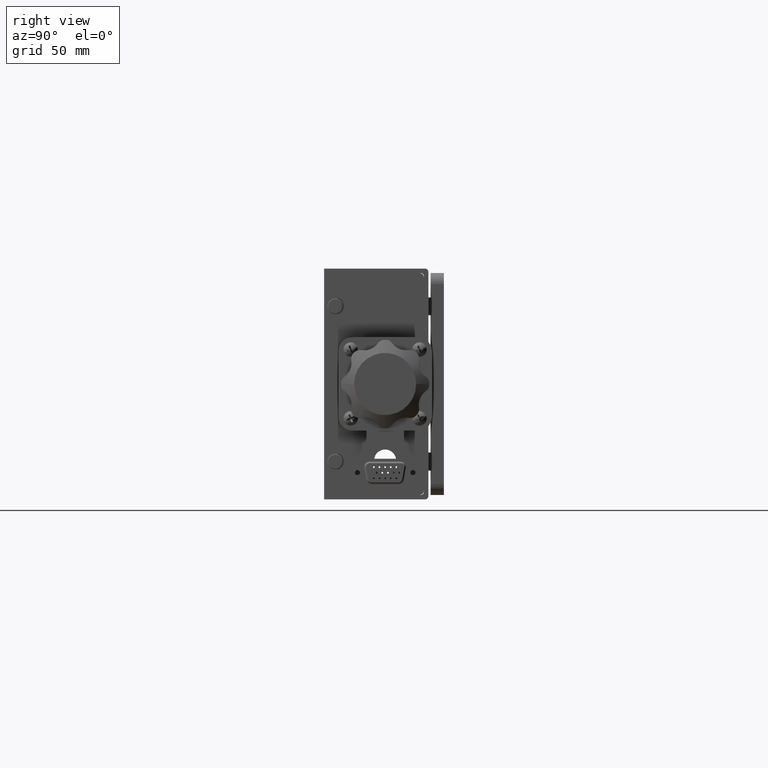
[diagram: clean part render]
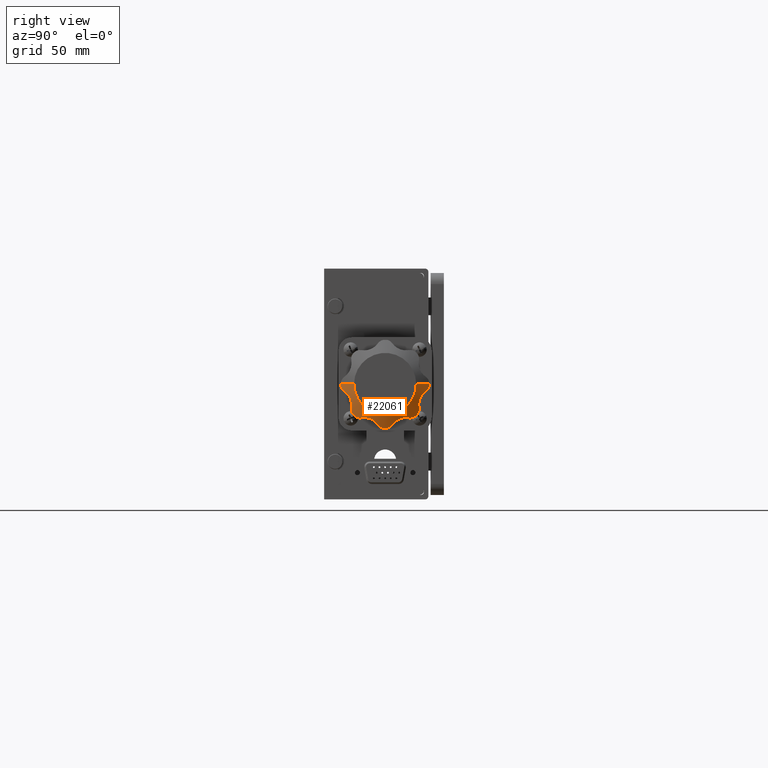
[diagram: same view with one face highlighted and labeled with its STEP entity id]
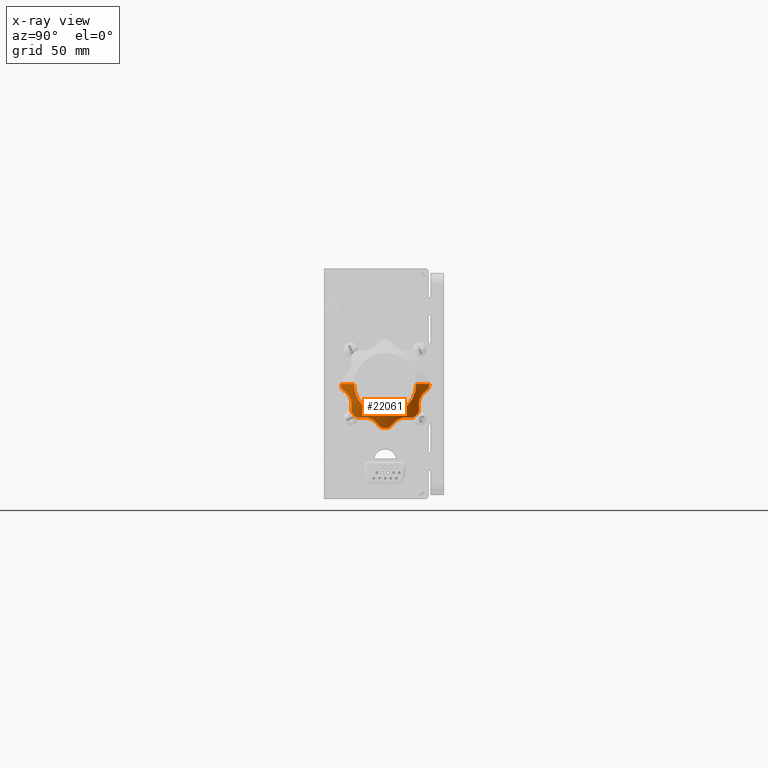
[diagram: x-ray of the same camera — body ghosted, the highlighted face saturated]
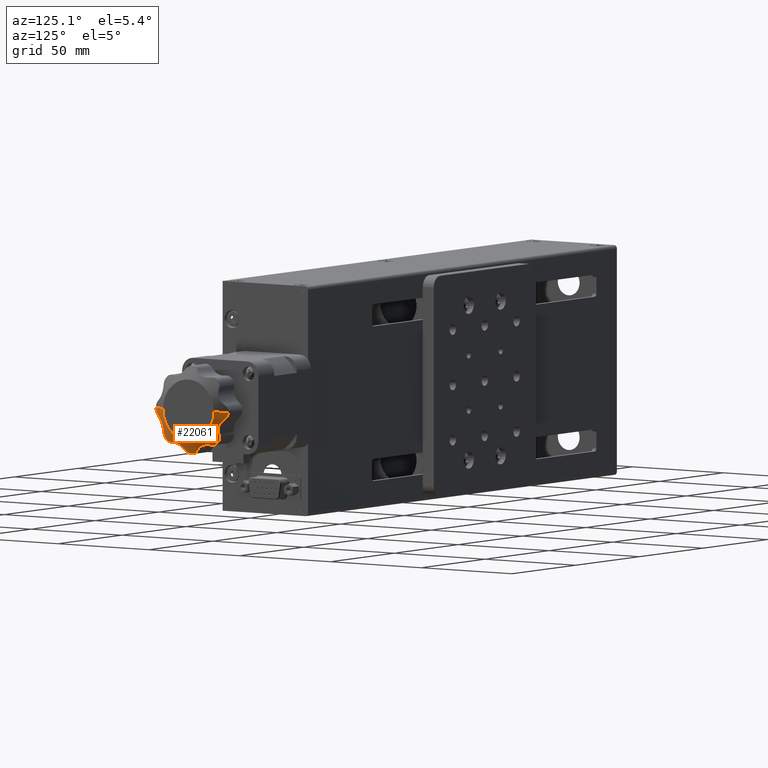
[diagram: same view with one face highlighted and labeled with its STEP entity id]
A machine part, right view. The second image highlights one B-rep face of the part: STEP entity #22061.
The next image is the same camera in x-ray: the body ghosted, the highlighted face saturated — about 0% of this face is hidden behind the body in this view.
A second angle (auxiliary view) of the same face is appended — the face is thin or edge-on in the first view.
In plain terms, the highlighted conical surface has half-angle 63 deg.
Its self-contained STEP definition (entity closure, byte-faithful):
#12 = CARTESIAN_POINT ( 'NONE',  ( 184.0000000000000300, 26.45167253179369700, -19.86018257591583900 ) ) ;
#52 = VERTEX_POINT ( 'NONE', #22390 ) ;
#512 = CARTESIAN_POINT ( 'NONE',  ( 184.3045522164380800, 15.74501306397941700, -15.29609788310636300 ) ) ;
#561 = CIRCLE ( 'NONE', #23534, 19.88783151651546200 ) ;
#562 = DIRECTION ( 'NONE',  ( 1.000000000000000000, -1.567335406337901700E-016, -1.104717828883689100E-016 ) ) ;
#570 = ORIENTED_EDGE ( 'NONE', *, *, #12036, .T. ) ;
#583 = DIRECTION ( 'NONE',  ( 1.000000000000000000, -1.567335406337901700E-016, -1.104717828883689100E-016 ) ) ;
#674 = CARTESIAN_POINT ( 'NONE',  ( 184.0000000000000300, 47.36018257591582900, -1.048327468206231300 ) ) ;
#1185 = CARTESIAN_POINT ( 'NONE',  ( 185.3777367299794900, 32.74344599683732300, -16.36799925480003300 ) ) ;
#1284 = CARTESIAN_POINT ( 'NONE',  ( 185.1076970187259000, 18.23016302368141700, -15.10864167487845200 ) ) ;
#1295 = CARTESIAN_POINT ( 'NONE',  ( 184.6624876279491600, 38.12220015011040200, -15.25348212235923400 ) ) ;
#1299 = VERTEX_POINT ( 'NONE', #21240 ) ;
#1399 = CARTESIAN_POINT ( 'NONE',  ( 184.8957180678859200, 23.81599125102807000, -17.75390421083995900 ) ) ;
#1561 = CARTESIAN_POINT ( 'NONE',  ( 184.0593759186635100, 7.784446417491393400, -1.499709208656746100 ) ) ;
#1604 = VERTEX_POINT ( 'NONE', #25804 ) ;
#1659 = CARTESIAN_POINT ( 'NONE',  ( 185.4667672483696800, 43.34782582704125500, -6.179722338723446600 ) ) ;
#1739 = VERTEX_POINT ( 'NONE', #13859 ) ;
#1771 = EDGE_CURVE ( 'NONE', #2765, #24695, #10749, .T. ) ;
#1894 = CIRCLE ( 'NONE', #15603, 19.88783151651546200 ) ;
#2017 = VERTEX_POINT ( 'NONE', #20246 ) ;
#2398 = CARTESIAN_POINT ( 'NONE',  ( 185.2153070941807000, 12.34068434200465500, -8.752941132292345800 ) ) ;
#2592 = CARTESIAN_POINT ( 'NONE',  ( 184.0515186887566600, 12.47708309700971600, -12.88588420570760800 ) ) ;
#2765 = VERTEX_POINT ( 'NONE', #26857 ) ;
#2815 = CARTESIAN_POINT ( 'NONE',  ( 187.0000000000000300, 27.50000000000001400, -1.908195823574487800E-014 ) ) ;
#3104 = B_SPLINE_CURVE_WITH_KNOTS ( 'NONE', 3,
 ( #35577, #30013, #10768, #19015, #2592, #21789 ),
 .UNSPECIFIED., .F., .F.,
 ( 4, 2, 4 ),
 ( 2.128886231513577200E-007, 0.001425860909439160400, 0.002851508930255169800 ),
 .UNSPECIFIED. ) ;
#3157 = B_SPLINE_CURVE_WITH_KNOTS ( 'NONE', 3,
 ( #35263, #15975, #5056, #24262, #7822, #27026, #10564, #29800, #13302, #32604, #16087, #35380, #18818, #2398, #21584, #5159 ),
 .UNSPECIFIED., .F., .F.,
 ( 4, 2, 2, 2, 2, 2, 2, 4 ),
 ( 2.564491608313972700E-007, 0.001803318164121251900, 0.002704849021601461600, 0.003606379879081672300, 0.004507910736561882200, 0.005409441594042091600, 0.006310972451522300200, 0.007212503309002507900 ),
 .UNSPECIFIED. ) ;
#3281 = CARTESIAN_POINT ( 'NONE',  ( 184.5055536155510100, 16.42778674251092100, -15.31287218392950000 ) ) ;
#3455 = B_SPLINE_CURVE_WITH_KNOTS ( 'NONE', 3,
 ( #11684, #28147, #19916, #3545 ),
 .UNSPECIFIED., .F., .F.,
 ( 4, 4 ),
 ( 0.002119815171544775100, 0.002845652650325454200 ),
 .UNSPECIFIED. ) ;
#3545 = CARTESIAN_POINT ( 'NONE',  ( 184.6624876279491300, 42.75348212235912400, -10.62220015011075000 ) ) ;
#3695 = DIRECTION ( 'NONE',  ( -0.4539904997395446400, -0.8910065241883690100, -5.896368886606032500E-017 ) ) ;
#3955 = CARTESIAN_POINT ( 'NONE',  ( 185.4712212983297900, 33.66834296151959200, -15.84595546684313800 ) ) ;
#4063 = CARTESIAN_POINT ( 'NONE',  ( 185.3777368135646100, 19.63375352788478200, -15.28159960163550000 ) ) ;
#4074 = CARTESIAN_POINT ( 'NONE',  ( 184.0000000000000300, 42.28454923670562200, -13.30199031336028300 ) ) ;
#4184 = CARTESIAN_POINT ( 'NONE',  ( 184.6624876279491600, 24.22518911183597400, -18.29687040269197600 ) ) ;
#4227 = EDGE_CURVE ( 'NONE', #34670, #25108, #34438, .T. ) ;
#4335 = CARTESIAN_POINT ( 'NONE',  ( 184.1914101639429200, 8.102738441091910100, -2.124327132788312000 ) ) ;
#4431 = CARTESIAN_POINT ( 'NONE',  ( 185.4338196571571000, 43.59403031007268200, -5.703246881861222300 ) ) ;
#4616 = ORIENTED_EDGE ( 'NONE', *, *, #32184, .T. ) ;
#4925 = CARTESIAN_POINT ( 'NONE',  ( 184.0593759186635100, 28.99970920865681000, -19.71555358250865100 ) ) ;
#5056 = CARTESIAN_POINT ( 'NONE',  ( 185.0431600133842900, 10.10239113128625200, -3.985244069722389900 ) ) ;
#5159 = CARTESIAN_POINT ( 'NONE',  ( 185.0681554785693900, 12.35808394342095800, -9.341218788444628300 ) ) ;
#5181 = B_SPLINE_CURVE_WITH_KNOTS ( 'NONE', 3,
 ( #32356, #15851, #4925, #24121, #7702, #26900, #10413, #29673, #13172, #32469 ),
 .UNSPECIFIED., .F., .F.,
 ( 4, 2, 2, 2, 4 ),
 ( 1.845941825701741800E-006, 0.0007127976259200818600, 0.001423749310014462000, 0.002134700994108842300, 0.002845652678203222500 ),
 .UNSPECIFIED. ) ;
#5350 = ORIENTED_EDGE ( 'NONE', *, *, #30948, .T. ) ;
#5404 = CARTESIAN_POINT ( 'NONE',  ( 184.4997281778311700, 24.48546536711774000, -18.66796470288772600 ) ) ;
#5560 = DIRECTION ( 'NONE',  ( 0.0000000000000000000, 1.000000000000000000, 0.0000000000000000000 ) ) ;
#5851 = CARTESIAN_POINT ( 'NONE',  ( 184.6624876279491600, 30.77481088816404800, -18.29687040269199700 ) ) ;
#6014 = CARTESIAN_POINT ( 'NONE',  ( 184.6624876279491300, 16.87779984988964400, -15.25348212235943600 ) ) ;
#6023 = EDGE_CURVE ( 'NONE', #1604, #24422, #3157, .T. ) ;
#6074 = EDGE_CURVE ( 'NONE', #29016, #52, #14765, .T. ) ;
#6312 = CARTESIAN_POINT ( 'NONE',  ( 184.6624876279491300, 42.75348212235912400, -10.62220015011075000 ) ) ;
#6587 = EDGE_CURVE ( 'NONE', #33883, #23279, #3104, .T. ) ;
#6676 = CARTESIAN_POINT ( 'NONE',  ( 185.4667672571537500, 34.33638125268968400, -15.57582878604119400 ) ) ;
#6802 = CARTESIAN_POINT ( 'NONE',  ( 185.4712213111371000, 20.65689516562854100, -15.56645992878769200 ) ) ;
#6807 = CARTESIAN_POINT ( 'NONE',  ( 184.0382766644688100, 42.46164844871560000, -12.99283737778647400 ) ) ;
#6956 = ORIENTED_EDGE ( 'NONE', *, *, #15248, .T. ) ;
#6973 = EDGE_CURVE ( 'NONE', #34831, #13658, #7112, .T. ) ;
#7066 = CARTESIAN_POINT ( 'NONE',  ( 184.3674099949589300, 8.520441163076080600, -2.678406106052257900 ) ) ;
#7112 = LINE ( 'NONE', #28669, #28171 ) ;
#7177 = CARTESIAN_POINT ( 'NONE',  ( 185.3234119966749900, 44.06797905133654300, -4.956625722604007600 ) ) ;
#7298 = EDGE_CURVE ( 'NONE', #52, #23350, #1894, .T. ) ;
#7651 = CARTESIAN_POINT ( 'NONE',  ( 184.6624876279491600, 38.12220015011040200, -15.25348212235923400 ) ) ;
#7702 = CARTESIAN_POINT ( 'NONE',  ( 184.1914101639428900, 29.62432713278832000, -19.39726155890816600 ) ) ;
#7822 = CARTESIAN_POINT ( 'NONE',  ( 185.3053658163797500, 10.87376796899485300, -4.882243563092405500 ) ) ;
#7895 = EDGE_LOOP ( 'NONE', ( #8947, #19849, #6956, #23426, #17057, #32850, #20606, #5350, #23717, #26396, #28259, #14887, #13588, #25740, #570, #16388, #25578, #4616, #13846, #15477, #13897, #20252 ) ) ;
#8154 = CARTESIAN_POINT ( 'NONE',  ( 184.0000000000000300, 7.612168483484529300, -2.118609980794802100E-014 ) ) ;
#8715 = DIRECTION ( 'NONE',  ( 1.000000000000000000, -1.567335406337901700E-016, -1.104717828883689100E-016 ) ) ;
#8746 = EDGE_CURVE ( 'NONE', #20827, #2017, #13923, .T. ) ;
#8808 = CARTESIAN_POINT ( 'NONE',  ( 184.4997281778311700, 46.16796470288769400, -3.014534632882292600 ) ) ;
#8947 = ORIENTED_EDGE ( 'NONE', *, *, #35148, .F. ) ;
#9129 = AXIS2_PLACEMENT_3D ( 'NONE', #17016, #583, #19710 ) ;
#9393 = CARTESIAN_POINT ( 'NONE',  ( 184.9063472167102600, 17.54670255093949300, -15.13607644208976800 ) ) ;
#9404 = CARTESIAN_POINT ( 'NONE',  ( 185.4338197077305500, 34.84739286181038400, -15.41300267155313700 ) ) ;
#9516 = CARTESIAN_POINT ( 'NONE',  ( 185.4667672483696500, 21.32027766127679100, -15.84782582704135800 ) ) ;
#9523 = CARTESIAN_POINT ( 'NONE',  ( 184.2033968980167300, 42.72573103771587500, -12.16590967332487600 ) ) ;
#9669 = CARTESIAN_POINT ( 'NONE',  ( 184.0256971240976900, 7.702505666033209400, -1.279159976773878400 ) ) ;
#9786 = CARTESIAN_POINT ( 'NONE',  ( 184.9063472167102900, 42.63607644208956800, -9.953297449060853500 ) ) ;
#9800 = CARTESIAN_POINT ( 'NONE',  ( 184.5812778788824200, 9.017969995348700300, -3.144944577088886200 ) ) ;
#9902 = CARTESIAN_POINT ( 'NONE',  ( 185.0936131362179500, 44.75110680748104400, -4.152135574547629400 ) ) ;
#10095 = B_SPLINE_CURVE_WITH_KNOTS ( 'NONE', 3,
 ( #26302, #9786, #29065, #12545, #31854, #15344, #34609, #18076, #1659, #20829, #4431, #23622, #7177, #26407, #9902, #29194, #12665, #31961 ),
 .UNSPECIFIED., .F., .F.,
 ( 4, 2, 2, 2, 2, 2, 2, 2, 4 ),
 ( 2.131679597219304700E-007, 0.002139037759767619400, 0.003208450055671571800, 0.004277862351575521600, 0.004812568499527499800, 0.005347274647479478000, 0.006416686943383444700, 0.007486099239287410600, 0.008555511535191375600 ),
 .UNSPECIFIED. ) ;
#10398 = B_SPLINE_CURVE_WITH_KNOTS ( 'NONE', 3,
 ( #13386, #18911, #10778, #30024 ),
 .UNSPECIFIED., .F., .F.,
 ( 4, 4 ),
 ( 0.007212503309002507900, 0.008555554693879353200 ),
 .UNSPECIFIED. ) ;
#10413 = CARTESIAN_POINT ( 'NONE',  ( 184.3674099949589000, 30.17840610605222200, -18.97955883692403100 ) ) ;
#10564 = CARTESIAN_POINT ( 'NONE',  ( 185.4288222905057400, 11.36701877601790000, -5.627131730998497600 ) ) ;
#10749 = LINE ( 'NONE', #33997, #21890 ) ;
#10768 = CARTESIAN_POINT ( 'NONE',  ( 184.3610722483295500, 12.16468096182760000, -11.52552917857949800 ) ) ;
#10778 = CARTESIAN_POINT ( 'NONE',  ( 184.8156813861331800, 12.32027268664400300, -10.20199227904085900 ) ) ;
#10878 = CARTESIAN_POINT ( 'NONE',  ( 184.3610722483294900, 39.02552917857909200, -15.33531903817279000 ) ) ;
#11077 = CARTESIAN_POINT ( 'NONE',  ( 184.0000000000000300, 27.50000000000001400, -1.875054288707977000E-014 ) ) ;
#11275 = CARTESIAN_POINT ( 'NONE',  ( 184.0000000000000300, 40.80199031336000100, -14.78454923670587300 ) ) ;
#11684 = CARTESIAN_POINT ( 'NONE',  ( 184.4321513908461400, 42.81370849898461700, -11.31370849898493300 ) ) ;
#12036 = EDGE_CURVE ( 'NONE', #25108, #20827, #31755, .T. ) ;
#12177 = CARTESIAN_POINT ( 'NONE',  ( 185.3234121039778300, 35.71046609738876000, -15.22019407640756900 ) ) ;
#12227 = VERTEX_POINT ( 'NONE', #33618 ) ;
#12288 = CARTESIAN_POINT ( 'NONE',  ( 185.4338196571570700, 21.79675311813899400, -16.09403031007275700 ) ) ;
#12294 = CARTESIAN_POINT ( 'NONE',  ( 184.3331138828684200, 42.80301001267881100, -11.65284822802369800 ) ) ;
#12545 = CARTESIAN_POINT ( 'NONE',  ( 185.3225106314464500, 42.71937809799144500, -8.215704798986060100 ) ) ;
#12665 = CARTESIAN_POINT ( 'NONE',  ( 184.7844689233042700, 45.51875098533093200, -3.469876887382306900 ) ) ;
#12694 = CARTESIAN_POINT ( 'NONE',  ( 184.0000000000000300, 47.38783151651549000, -1.875054288707977000E-014 ) ) ;
#13172 = CARTESIAN_POINT ( 'NONE',  ( 184.5812778788824500, 30.64494457708881800, -18.48203000465144500 ) ) ;
#13302 = CARTESIAN_POINT ( 'NONE',  ( 185.4757041354543200, 11.76981894422402200, -6.431829773994324200 ) ) ;
#13386 = CARTESIAN_POINT ( 'NONE',  ( 185.0681554785693900, 12.35808394342095800, -9.341218788444628300 ) ) ;
#13588 = ORIENTED_EDGE ( 'NONE', *, *, #34441, .T. ) ;
#13610 = CARTESIAN_POINT ( 'NONE',  ( 184.0515186887566300, 40.38588420570723500, -15.02291690299073500 ) ) ;
#13620 = CARTESIAN_POINT ( 'NONE',  ( 184.4321513908461400, 42.81370849898461700, -11.31370849898493300 ) ) ;
#13655 = CARTESIAN_POINT ( 'NONE',  ( 184.3610719225174000, 24.80607272539071000, -18.99348869398901500 ) ) ;
#13658 = VERTEX_POINT ( 'NONE', #12694 ) ;
#13806 = DIRECTION ( 'NONE',  ( 0.0000000000000000000, 1.000000000000000000, 0.0000000000000000000 ) ) ;
#13846 = ORIENTED_EDGE ( 'NONE', *, *, #19525, .T. ) ;
#13859 = CARTESIAN_POINT ( 'NONE',  ( 184.6624876279491600, 45.79687040269191600, -3.274810888164078700 ) ) ;
#13897 = ORIENTED_EDGE ( 'NONE', *, *, #27975, .T. ) ;
#13923 = CIRCLE ( 'NONE', #14973, 19.88783151651546200 ) ;
#14165 = CARTESIAN_POINT ( 'NONE',  ( 184.0593759180046600, 14.61945291401821800, -15.00145618236294400 ) ) ;
#14334 = CARTESIAN_POINT ( 'NONE',  ( 184.3610719225173400, 46.49348869398901500, -2.693927274609276200 ) ) ;
#14765 = B_SPLINE_CURVE_WITH_KNOTS ( 'NONE', 3,
 ( #35613, #5404, #13655, #32947, #16426, #12 ),
 .UNSPECIFIED., .F., .F.,
 ( 4, 2, 4 ),
 ( 2.561101793686570000E-007, 0.001425904833248674000, 0.002851553556317979700 ),
 .UNSPECIFIED. ) ;
#14850 = CARTESIAN_POINT ( 'NONE',  ( 184.6624876279491600, 30.77481088816404800, -18.29687040269199700 ) ) ;
#14887 = ORIENTED_EDGE ( 'NONE', *, *, #7298, .T. ) ;
#14973 = AXIS2_PLACEMENT_3D ( 'NONE', #15008, #34285, #17760 ) ;
#14977 = CARTESIAN_POINT ( 'NONE',  ( 185.0936132756212700, 36.76237085646508300, -15.13437783158883800 ) ) ;
#15008 = CARTESIAN_POINT ( 'NONE',  ( 184.0000000000000300, 27.50000000000001400, -1.875054288707977000E-014 ) ) ;
#15082 = CARTESIAN_POINT ( 'NONE',  ( 185.3234119966749100, 22.54337427739616500, -16.56797905133661100 ) ) ;
#15088 = CARTESIAN_POINT ( 'NONE',  ( 184.4321513908461400, 42.81370849898461700, -11.31370849898493300 ) ) ;
#15248 = EDGE_CURVE ( 'NONE', #24695, #23867, #20309, .T. ) ;
#15344 = CARTESIAN_POINT ( 'NONE',  ( 185.4519293113118600, 42.95506756187326400, -7.180730379740868600 ) ) ;
#15477 = ORIENTED_EDGE ( 'NONE', *, *, #21473, .T. ) ;
#15603 = AXIS2_PLACEMENT_3D ( 'NONE', #11077, #30313, #13806 ) ;
#15851 = CARTESIAN_POINT ( 'NONE',  ( 184.0256971240976900, 28.77915997677395400, -19.79749433396683100 ) ) ;
#15975 = CARTESIAN_POINT ( 'NONE',  ( 184.8680647907424400, 9.671849006889061700, -3.603558952037008800 ) ) ;
#16087 = CARTESIAN_POINT ( 'NONE',  ( 185.4416332507994700, 12.07450440983343900, -7.289062291734682100 ) ) ;
#16388 = ORIENTED_EDGE ( 'NONE', *, *, #8746, .T. ) ;
#16426 = CARTESIAN_POINT ( 'NONE',  ( 184.0515187176440000, 25.98888942864430300, -19.73450244827624200 ) ) ;
#16939 = CARTESIAN_POINT ( 'NONE',  ( 184.1914101614185900, 15.28619092501313800, -15.21806130307888900 ) ) ;
#16998 = CARTESIAN_POINT ( 'NONE',  ( 184.0000000000000300, 27.50000000000001400, -1.875054288707977000E-014 ) ) ;
#17016 = CARTESIAN_POINT ( 'NONE',  ( 184.0000000000000300, 27.50000000000001400, -1.875054288707977000E-014 ) ) ;
#17057 = ORIENTED_EDGE ( 'NONE', *, *, #6023, .T. ) ;
#17110 = CARTESIAN_POINT ( 'NONE',  ( 184.0515187176439700, 47.23450244827625300, -1.511110571355593000 ) ) ;
#17606 = CARTESIAN_POINT ( 'NONE',  ( 185.3225106727057300, 32.45234502402128400, -16.57110591280405700 ) ) ;
#17714 = CARTESIAN_POINT ( 'NONE',  ( 184.7844690265437700, 37.78760725010457100, -15.19475443748550700 ) ) ;
#17760 = DIRECTION ( 'NONE',  ( 0.0000000000000000000, 1.000000000000000000, 0.0000000000000000000 ) ) ;
#17835 = CARTESIAN_POINT ( 'NONE',  ( 185.0936131362179300, 23.34786442545251400, -17.25110680748109700 ) ) ;
#18076 = CARTESIAN_POINT ( 'NONE',  ( 185.4715224530974900, 43.27245465182239300, -6.344713980106814900 ) ) ;
#18150 = EDGE_CURVE ( 'NONE', #24422, #33883, #10398, .T. ) ;
#18677 = CARTESIAN_POINT ( 'NONE',  ( 184.0000000000000300, 12.71545076329440600, -13.30199031336042200 ) ) ;
#18818 = CARTESIAN_POINT ( 'NONE',  ( 185.3301160192735000, 12.26972078087237600, -8.162145340018199100 ) ) ;
#18911 = CARTESIAN_POINT ( 'NONE',  ( 184.9520165911938800, 12.35808394342096000, -9.775348774719722300 ) ) ;
#19015 = CARTESIAN_POINT ( 'NONE',  ( 184.1340889378584200, 12.32171329305612800, -12.44651678098874800 ) ) ;
#19525 = EDGE_CURVE ( 'NONE', #26538, #1739, #10095, .T. ) ;
#19639 = CARTESIAN_POINT ( 'NONE',  ( 184.3674099899104400, 15.97334434495790700, -15.31449387680406600 ) ) ;
#19692 = DIRECTION ( 'NONE',  ( 0.0000000000000000000, 1.000000000000000000, 0.0000000000000000000 ) ) ;
#19710 = DIRECTION ( 'NONE',  ( 0.0000000000000000000, 1.000000000000000000, 0.0000000000000000000 ) ) ;
#19849 = ORIENTED_EDGE ( 'NONE', *, *, #1771, .T. ) ;
#19916 = CARTESIAN_POINT ( 'NONE',  ( 184.5795775005562100, 42.79339902682558300, -10.84962121827258800 ) ) ;
#20246 = CARTESIAN_POINT ( 'NONE',  ( 184.0000000000000300, 42.28454923670562200, -13.30199031336028300 ) ) ;
#20252 = ORIENTED_EDGE ( 'NONE', *, *, #6973, .F. ) ;
#20309 = CIRCLE ( 'NONE', #21012, 19.88783151651546200 ) ;
#20328 = CARTESIAN_POINT ( 'NONE',  ( 185.4519292569572100, 33.35083928797615000, -16.00592656906530900 ) ) ;
#20445 = CARTESIAN_POINT ( 'NONE',  ( 185.3225106314465300, 19.28429520101421300, -15.21937809799159400 ) ) ;
#20549 = DIRECTION ( 'NONE',  ( -0.4539904997395442500, 0.8910065241883691200, 5.015313992060910100E-017 ) ) ;
#20568 = CARTESIAN_POINT ( 'NONE',  ( 184.7844689233042700, 24.03012311261778700, -18.01875098533096100 ) ) ;
#20606 = ORIENTED_EDGE ( 'NONE', *, *, #6587, .T. ) ;
#20609 = CARTESIAN_POINT ( 'NONE',  ( 185.0681554785693900, 12.35808394342095800, -9.341218788444628300 ) ) ;
#20613 = AXIS2_PLACEMENT_3D ( 'NONE', #2815, #22002, #5560 ) ;
#20626 = CIRCLE ( 'NONE', #9129, 19.88783151651546200 ) ;
#20714 = CARTESIAN_POINT ( 'NONE',  ( 184.1420244716242700, 7.984064295957394600, -1.921630104900730700 ) ) ;
#20827 = VERTEX_POINT ( 'NONE', #11275 ) ;
#20829 = CARTESIAN_POINT ( 'NONE',  ( 185.4479042270338300, 43.50844370797660300, -5.859439804940491200 ) ) ;
#21012 = AXIS2_PLACEMENT_3D ( 'NONE', #16998, #562, #19692 ) ;
#21047 = DIRECTION ( 'NONE',  ( 0.0000000000000000000, 1.000000000000000000, 0.0000000000000000000 ) ) ;
#21240 = CARTESIAN_POINT ( 'NONE',  ( 184.6624876279491300, 16.87779984988964400, -15.25348212235943600 ) ) ;
#21358 = VERTEX_POINT ( 'NONE', #13620 ) ;
#21473 = EDGE_CURVE ( 'NONE', #1739, #24661, #33761, .T. ) ;
#21530 = FACE_OUTER_BOUND ( 'NONE', #7895, .T. ) ;
#21584 = CARTESIAN_POINT ( 'NONE',  ( 185.1461143652519500, 12.35808394342095600, -9.049806573549849600 ) ) ;
#21784 = CARTESIAN_POINT ( 'NONE',  ( 184.6624876279491600, 38.12220015011040200, -15.25348212235923400 ) ) ;
#21789 = CARTESIAN_POINT ( 'NONE',  ( 184.0000000000000300, 12.71545076329440600, -13.30199031336042200 ) ) ;
#21890 = VECTOR ( 'NONE', #3695, 1000.000000000000000 ) ;
#22002 = DIRECTION ( 'NONE',  ( 1.000000000000000000, -1.567335406337901700E-016, -1.104717828883689100E-016 ) ) ;
#22061 = ADVANCED_FACE ( 'NONE', ( #21530 ), #25422, .T. ) ;
#22219 = B_SPLINE_CURVE_WITH_KNOTS ( 'NONE', 3,
 ( #31463, #9393, #1284, #20445, #4063, #23232, #6802, #26033, #9516, #28801, #12288, #31586, #15082, #34358, #17835, #1399, #20568, #4184 ),
 .UNSPECIFIED., .F., .F.,
 ( 4, 2, 2, 2, 2, 2, 2, 2, 4 ),
 ( 2.131679597060415600E-007, 0.002139037759767542200, 0.003208450055671459900, 0.004277862351575377600, 0.004812568499527331500, 0.005347274647479286300, 0.006416686943383194100, 0.007486099239287102700, 0.008555511535191011300 ),
 .UNSPECIFIED. ) ;
#22334 = CARTESIAN_POINT ( 'NONE',  ( 184.0256971238459000, 14.40556019771476300, -14.90344518668400700 ) ) ;
#22390 = CARTESIAN_POINT ( 'NONE',  ( 184.0000000000000300, 26.45167253179369700, -19.86018257591583900 ) ) ;
#22455 = CARTESIAN_POINT ( 'NONE',  ( 184.5812778587599900, 16.65504283533751800, -15.29258039298559900 ) ) ;
#22596 = CARTESIAN_POINT ( 'NONE',  ( 184.6624876279491600, 24.22518911183597400, -18.29687040269197600 ) ) ;
#23142 = CARTESIAN_POINT ( 'NONE',  ( 185.4715224592072200, 34.16641916447719800, -15.63919999233131000 ) ) ;
#23232 = CARTESIAN_POINT ( 'NONE',  ( 185.4519293113118600, 20.31926962025939100, -15.45506756187338100 ) ) ;
#23279 = VERTEX_POINT ( 'NONE', #18677 ) ;
#23350 = VERTEX_POINT ( 'NONE', #35696 ) ;
#23426 = ORIENTED_EDGE ( 'NONE', *, *, #26104, .T. ) ;
#23513 = CARTESIAN_POINT ( 'NONE',  ( 184.3045522205685200, 8.371994495727122400, -2.503943576036388400 ) ) ;
#23534 = AXIS2_PLACEMENT_3D ( 'NONE', #25214, #8715, #27957 ) ;
#23622 = CARTESIAN_POINT ( 'NONE',  ( 185.3782248456929600, 43.86615583551908100, -5.246134681423814800 ) ) ;
#23717 = ORIENTED_EDGE ( 'NONE', *, *, #27446, .T. ) ;
#23867 = VERTEX_POINT ( 'NONE', #27061 ) ;
#24121 = CARTESIAN_POINT ( 'NONE',  ( 184.1420244716242100, 29.42163010490076000, -19.51593570404265800 ) ) ;
#24262 = CARTESIAN_POINT ( 'NONE',  ( 185.2471494995148200, 10.68793007524672800, -4.645679003987877000 ) ) ;
#24422 = VERTEX_POINT ( 'NONE', #20609 ) ;
#24575 = CARTESIAN_POINT ( 'NONE',  ( 184.4997279871319900, 38.56864707441477700, -15.33184240520766500 ) ) ;
#24661 = VERTEX_POINT ( 'NONE', #30036 ) ;
#24695 = VERTEX_POINT ( 'NONE', #8154 ) ;
#24936 = EDGE_CURVE ( 'NONE', #1299, #29016, #22219, .T. ) ;
#25067 = CIRCLE ( 'NONE', #20613, 13.99999999999998000 ) ;
#25108 = VERTEX_POINT ( 'NONE', #7651 ) ;
#25214 = CARTESIAN_POINT ( 'NONE',  ( 184.0000000000000300, 27.50000000000001400, -1.875054288707977000E-014 ) ) ;
#25422 = CONICAL_SURFACE ( 'NONE', #33523, 13.99999999999998000, 1.099557428756430000 ) ;
#25578 = ORIENTED_EDGE ( 'NONE', *, *, #34861, .T. ) ;
#25740 = ORIENTED_EDGE ( 'NONE', *, *, #4227, .T. ) ;
#25804 = CARTESIAN_POINT ( 'NONE',  ( 184.6624876279491600, 9.203129597308141300, -3.274810888164195100 ) ) ;
#25915 = CARTESIAN_POINT ( 'NONE',  ( 185.4479042614597700, 34.67642898828081100, -15.46292887568895400 ) ) ;
#26033 = CARTESIAN_POINT ( 'NONE',  ( 185.4715224530974600, 21.15528601989340600, -15.77245465182249600 ) ) ;
#26038 = CARTESIAN_POINT ( 'NONE',  ( 184.0940759838539100, 42.59284161671926900, -12.66974006896806800 ) ) ;
#26104 = EDGE_CURVE ( 'NONE', #23867, #1604, #34615, .T. ) ;
#26302 = CARTESIAN_POINT ( 'NONE',  ( 184.6624876279491300, 42.75348212235912400, -10.62220015011075000 ) ) ;
#26313 = CARTESIAN_POINT ( 'NONE',  ( 184.5055536226904300, 8.842927178751537600, -2.998598698427695100 ) ) ;
#26396 = ORIENTED_EDGE ( 'NONE', *, *, #24936, .T. ) ;
#26407 = CARTESIAN_POINT ( 'NONE',  ( 185.1806272532480500, 44.51203306021656700, -4.407491966382952600 ) ) ;
#26516 = CARTESIAN_POINT ( 'NONE',  ( 187.0000000000000300, 27.50000000000001400, -1.908195823574487800E-014 ) ) ;
#26538 = VERTEX_POINT ( 'NONE', #6312 ) ;
#26857 = CARTESIAN_POINT ( 'NONE',  ( 187.0000000000000300, 13.50000000000001200, -2.099128178124960000E-014 ) ) ;
#26900 = CARTESIAN_POINT ( 'NONE',  ( 184.3045522205684100, 30.00394357603637400, -19.12800550427297000 ) ) ;
#27026 = CARTESIAN_POINT ( 'NONE',  ( 185.3959166495826300, 11.21259350742497700, -5.372307157035359100 ) ) ;
#27061 = CARTESIAN_POINT ( 'NONE',  ( 184.0000000000000300, 7.639817424084191600, -1.048327468206239600 ) ) ;
#27446 = EDGE_CURVE ( 'NONE', #12227, #1299, #27718, .T. ) ;
#27718 = B_SPLINE_CURVE_WITH_KNOTS ( 'NONE', 3,
 ( #27757, #22334, #14165, #33460, #16939, #512, #19639, #3281, #22455, #6014 ),
 .UNSPECIFIED., .F., .F.,
 ( 4, 2, 2, 2, 4 ),
 ( 1.845941825668585100E-006, 0.0007127976189506481500, 0.001423749296075627800, 0.002134700973200602400, 0.002845652650325577000 ),
 .UNSPECIFIED. ) ;
#27757 = CARTESIAN_POINT ( 'NONE',  ( 184.0000000000000300, 14.19800968664003800, -14.78454923670601900 ) ) ;
#27957 = DIRECTION ( 'NONE',  ( 0.0000000000000000000, 1.000000000000000000, 0.0000000000000000000 ) ) ;
#27975 = EDGE_CURVE ( 'NONE', #24661, #13658, #561, .T. ) ;
#28045 = CARTESIAN_POINT ( 'NONE',  ( 184.6624876279491600, 45.79687040269191600, -3.274810888164078700 ) ) ;
#28147 = CARTESIAN_POINT ( 'NONE',  ( 184.5024017722140600, 42.81370849898461700, -11.08168198380104600 ) ) ;
#28171 = VECTOR ( 'NONE', #20549, 1000.000000000000100 ) ;
#28259 = ORIENTED_EDGE ( 'NONE', *, *, #6074, .T. ) ;
#28669 = CARTESIAN_POINT ( 'NONE',  ( 187.0000000000000300, 41.49999999999999300, -1.908195823574487800E-014 ) ) ;
#28697 = CARTESIAN_POINT ( 'NONE',  ( 187.0000000000000300, 41.49999999999999300, -1.908195823574487800E-014 ) ) ;
#28700 = CARTESIAN_POINT ( 'NONE',  ( 185.3782249368032900, 35.36304170602515700, -15.28219731838613300 ) ) ;
#28801 = CARTESIAN_POINT ( 'NONE',  ( 185.4479042270338900, 21.64056019505972400, -16.00844370797669600 ) ) ;
#28807 = CARTESIAN_POINT ( 'NONE',  ( 184.2444533669842600, 42.75921375828629300, -11.99380450088327200 ) ) ;
#29016 = VERTEX_POINT ( 'NONE', #22596 ) ;
#29065 = CARTESIAN_POINT ( 'NONE',  ( 185.1076970187259000, 42.60864167487826400, -9.269836976318897500 ) ) ;
#29075 = CARTESIAN_POINT ( 'NONE',  ( 184.6624876279491600, 9.203129597308141300, -3.274810888164195100 ) ) ;
#29194 = CARTESIAN_POINT ( 'NONE',  ( 184.8957180678858900, 45.25390421083992000, -3.684008748972040300 ) ) ;
#29673 = CARTESIAN_POINT ( 'NONE',  ( 184.5055536226904000, 30.49859869842763500, -18.65707282124860500 ) ) ;
#29800 = CARTESIAN_POINT ( 'NONE',  ( 185.4687201121260800, 11.64554821067598700, -6.156684062215541400 ) ) ;
#30013 = CARTESIAN_POINT ( 'NONE',  ( 184.4997279871319600, 12.16815759479269100, -11.06864707441525300 ) ) ;
#30024 = CARTESIAN_POINT ( 'NONE',  ( 184.6624876279491300, 12.24651787764093100, -10.62220015011088800 ) ) ;
#30036 = CARTESIAN_POINT ( 'NONE',  ( 184.0000000000000300, 47.36018257591582900, -1.048327468206231300 ) ) ;
#30116 = CARTESIAN_POINT ( 'NONE',  ( 184.1340889378584200, 39.94651678098835400, -15.17828670694430600 ) ) ;
#30313 = DIRECTION ( 'NONE',  ( 1.000000000000000000, -1.567335406337901700E-016, -1.104717828883689100E-016 ) ) ;
#30948 = EDGE_CURVE ( 'NONE', #23279, #12227, #20626, .T. ) ;
#31358 = CARTESIAN_POINT ( 'NONE',  ( 184.9063469930233900, 31.16477781365383500, -17.74086692416700800 ) ) ;
#31463 = CARTESIAN_POINT ( 'NONE',  ( 184.6624876279491300, 16.87779984988964400, -15.25348212235943600 ) ) ;
#31470 = CARTESIAN_POINT ( 'NONE',  ( 185.1806272895485400, 36.41275635498907100, -15.14589139243842700 ) ) ;
#31554 = CARTESIAN_POINT ( 'NONE',  ( 184.6624876279491300, 12.24651787764093100, -10.62220015011088800 ) ) ;
#31586 = CARTESIAN_POINT ( 'NONE',  ( 185.3782248456928700, 22.25386531857637000, -16.36615583551912700 ) ) ;
#31592 = CARTESIAN_POINT ( 'NONE',  ( 184.3809043312553800, 42.81370849898462400, -11.48296988118306500 ) ) ;
#31745 = CARTESIAN_POINT ( 'NONE',  ( 184.0000000000000300, 7.639817424084191600, -1.048327468206239600 ) ) ;
#31755 = B_SPLINE_CURVE_WITH_KNOTS ( 'NONE', 3,
 ( #21784, #24575, #10878, #30116, #13610, #32896 ),
 .UNSPECIFIED., .F., .F.,
 ( 4, 2, 4 ),
 ( 2.128886231812107900E-007, 0.001425860909439222600, 0.002851508930255264300 ),
 .UNSPECIFIED. ) ;
#31854 = CARTESIAN_POINT ( 'NONE',  ( 185.3777368135646100, 42.78159960163535700, -7.866246472115498100 ) ) ;
#31878 = B_SPLINE_CURVE_WITH_KNOTS ( 'NONE', 3,
 ( #4074, #6807, #26038, #9523, #28807, #12294, #31592, #15088 ),
 .UNSPECIFIED., .F., .F.,
 ( 4, 2, 2, 4 ),
 ( 1.845941825619360400E-006, 0.001060830556685191200, 0.001590322864114982800, 0.002119815171544775100 ),
 .UNSPECIFIED. ) ;
#31961 = CARTESIAN_POINT ( 'NONE',  ( 184.6624876279491600, 45.79687040269191600, -3.274810888164078700 ) ) ;
#32184 = EDGE_CURVE ( 'NONE', #21358, #26538, #3455, .T. ) ;
#32356 = CARTESIAN_POINT ( 'NONE',  ( 184.0000000000000000, 28.54832746820633500, -19.86018257591583900 ) ) ;
#32469 = CARTESIAN_POINT ( 'NONE',  ( 184.6624876279491600, 30.77481088816404800, -18.29687040269199700 ) ) ;
#32604 = CARTESIAN_POINT ( 'NONE',  ( 185.4620551456884500, 11.98558585770153300, -7.001502105304521900 ) ) ;
#32850 = ORIENTED_EDGE ( 'NONE', *, *, #18150, .T. ) ;
#32896 = CARTESIAN_POINT ( 'NONE',  ( 184.0000000000000300, 40.80199031336000100, -14.78454923670587300 ) ) ;
#32947 = CARTESIAN_POINT ( 'NONE',  ( 184.1340889782052000, 25.56834694938538600, -19.53368578314134000 ) ) ;
#33460 = CARTESIAN_POINT ( 'NONE',  ( 184.1420244698525700, 15.05894719184619200, -15.15864815293881300 ) ) ;
#33523 = AXIS2_PLACEMENT_3D ( 'NONE', #26516, #34711, #21047 ) ;
#33618 = CARTESIAN_POINT ( 'NONE',  ( 184.0000000000000300, 14.19800968664003800, -14.78454923670601900 ) ) ;
#33631 = CARTESIAN_POINT ( 'NONE',  ( 184.1340889782052000, 47.03368578314135800, -1.931653050614528600 ) ) ;
#33761 = B_SPLINE_CURVE_WITH_KNOTS ( 'NONE', 3,
 ( #28045, #8808, #14334, #33631, #17110, #674 ),
 .UNSPECIFIED., .F., .F.,
 ( 4, 2, 4 ),
 ( 2.561101793994170100E-007, 0.001425904833248822600, 0.002851553556318246000 ),
 .UNSPECIFIED. ) ;
#33883 = VERTEX_POINT ( 'NONE', #31554 ) ;
#33997 = CARTESIAN_POINT ( 'NONE',  ( 187.0000000000000300, 13.50000000000003000, -2.079646375455117000E-014 ) ) ;
#34126 = CARTESIAN_POINT ( 'NONE',  ( 185.1076968662359300, 31.62865784591609900, -17.23818802919779700 ) ) ;
#34255 = CARTESIAN_POINT ( 'NONE',  ( 184.8957182112122600, 37.44891803972237200, -15.15889358946788200 ) ) ;
#34285 = DIRECTION ( 'NONE',  ( 1.000000000000000000, -1.567335406337901700E-016, -1.104717828883689100E-016 ) ) ;
#34358 = CARTESIAN_POINT ( 'NONE',  ( 185.1806272532480200, 23.09250803361720000, -17.01203306021662000 ) ) ;
#34438 = B_SPLINE_CURVE_WITH_KNOTS ( 'NONE', 3,
 ( #14850, #31358, #34126, #17606, #1185, #20328, #3955, #23142, #6676, #25915, #9404, #28700, #12177, #31470, #14977, #34255, #17714, #1295 ),
 .UNSPECIFIED., .F., .F.,
 ( 4, 2, 2, 2, 2, 2, 2, 2, 4 ),
 ( 2.564491608275373400E-007, 0.002139081010340400600, 0.003208493290930179400, 0.004277905571519957500, 0.004812611711814849700, 0.005347317852109740300, 0.006416730132699514400, 0.007486142413289288500, 0.008555554693879061800 ),
 .UNSPECIFIED. ) ;
#34441 = EDGE_CURVE ( 'NONE', #23350, #34670, #5181, .T. ) ;
#34609 = CARTESIAN_POINT ( 'NONE',  ( 185.4712213111371300, 43.06645992878757300, -6.843104834371703600 ) ) ;
#34615 = B_SPLINE_CURVE_WITH_KNOTS ( 'NONE', 3,
 ( #31745, #9669, #1561, #20714, #4335, #23513, #7066, #26313, #9800, #29075 ),
 .UNSPECIFIED., .F., .F.,
 ( 4, 2, 2, 2, 4 ),
 ( 1.845941825689274100E-006, 0.0007127976259201223000, 0.001423749310014556800, 0.002134700994108991100, 0.002845652678203425400 ),
 .UNSPECIFIED. ) ;
#34670 = VERTEX_POINT ( 'NONE', #5851 ) ;
#34711 = DIRECTION ( 'NONE',  ( -1.000000000000000000, 1.567335406337901700E-016, 1.104717828883689100E-016 ) ) ;
#34831 = VERTEX_POINT ( 'NONE', #28697 ) ;
#34861 = EDGE_CURVE ( 'NONE', #2017, #21358, #31878, .T. ) ;
#35148 = EDGE_CURVE ( 'NONE', #2765, #34831, #25067, .T. ) ;
#35263 = CARTESIAN_POINT ( 'NONE',  ( 184.6624876279491600, 9.203129597308141300, -3.274810888164195100 ) ) ;
#35380 = CARTESIAN_POINT ( 'NONE',  ( 185.3756647833042500, 12.21657600430919500, -7.869383087599610200 ) ) ;
#35577 = CARTESIAN_POINT ( 'NONE',  ( 184.6624876279491300, 12.24651787764093100, -10.62220015011088800 ) ) ;
#35613 = CARTESIAN_POINT ( 'NONE',  ( 184.6624876279491600, 24.22518911183597400, -18.29687040269197600 ) ) ;
#35696 = CARTESIAN_POINT ( 'NONE',  ( 184.0000000000000000, 28.54832746820633500, -19.86018257591583900 ) ) ;